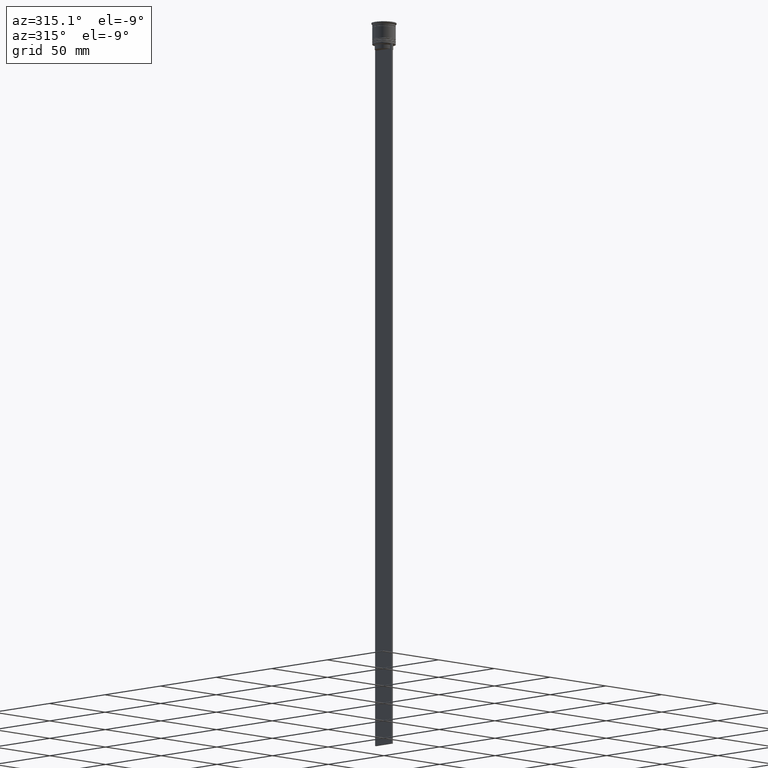
[diagram: clean part render]
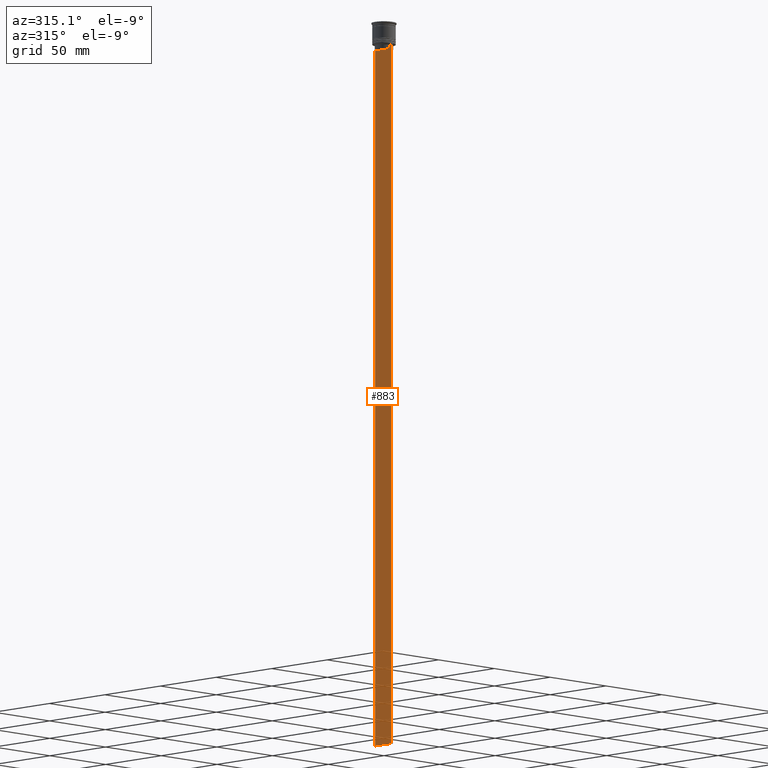
[diagram: same view with one face highlighted and labeled with its STEP entity id]
A machine part, auxiliary view. The second image highlights one B-rep face of the part: STEP entity #883.
In plain terms, the highlighted planar face has unit normal (-1, 0, 0).
Its self-contained STEP definition (entity closure, byte-faithful):
#5 = EDGE_CURVE ( 'NONE', #1518, #1023, #1056, .T. ) ;
#73 = CARTESIAN_POINT ( 'NONE',  ( -0.5000000000000000000, -7.499999999999999112, -464.0000000000000000 ) ) ;
#87 = VECTOR ( 'NONE', #1513, 1000.000000000000000 ) ;
#102 = VECTOR ( 'NONE', #870, 1000.000000000000000 ) ;
#107 = ORIENTED_EDGE ( 'NONE', *, *, #273, .F. ) ;
#109 = ORIENTED_EDGE ( 'NONE', *, *, #263, .F. ) ;
#197 = ORIENTED_EDGE ( 'NONE', *, *, #1519, .T. ) ;
#204 = LINE ( 'NONE', #1581, #1998 ) ;
#263 = EDGE_CURVE ( 'NONE', #2399, #407, #1458, .T. ) ;
#267 = DIRECTION ( 'NONE',  ( -0.000000000000000000, -0.000000000000000000, 1.000000000000000000 ) ) ;
#273 = EDGE_CURVE ( 'NONE', #407, #2125, #499, .T. ) ;
#288 = CARTESIAN_POINT ( 'NONE',  ( -0.5000000000000000000, 6.046020074006152711, -14.33335695351623151 ) ) ;
#327 = CARTESIAN_POINT ( 'NONE',  ( -0.5000000000000000000, -6.380438856379706536, -14.00000000000000178 ) ) ;
#407 = VERTEX_POINT ( 'NONE', #818 ) ;
#462 = CARTESIAN_POINT ( 'NONE',  ( -0.5000000000000000000, -7.499999999999999112, -14.00000000000000178 ) ) ;
#465 = DIRECTION ( 'NONE',  ( 0.000000000000000000, 0.000000000000000000, 1.000000000000000000 ) ) ;
#479 = ORIENTED_EDGE ( 'NONE', *, *, #1276, .F. ) ;
#497 = CARTESIAN_POINT ( 'NONE',  ( -0.5000000000000000000, -5.878775382679625849, -14.50000000000000000 ) ) ;
#499 = LINE ( 'NONE', #2051, #2371 ) ;
#539 = ORIENTED_EDGE ( 'NONE', *, *, #5, .F. ) ;
#552 = DIRECTION ( 'NONE',  ( 0.000000000000000000, -1.000000000000000000, 0.000000000000000000 ) ) ;
#567 = LINE ( 'NONE', #1336, #1309 ) ;
#573 = B_SPLINE_CURVE_WITH_KNOTS ( 'NONE', 3,
 ( #497, #1281, #2050, #327 ),
 .UNSPECIFIED., .F., .F.,
 ( 4, 4 ),
 ( 0.02765270321082434479, 0.02836198271238431559 ),
 .UNSPECIFIED. ) ;
#593 = ORIENTED_EDGE ( 'NONE', *, *, #2248, .F. ) ;
#613 = CARTESIAN_POINT ( 'NONE',  ( -0.5000000000000000000, -7.383088784512886527, -14.00000000000000178 ) ) ;
#639 = VECTOR ( 'NONE', #2379, 1000.000000000000000 ) ;
#667 = FACE_OUTER_BOUND ( 'NONE', #2329, .T. ) ;
#680 = CARTESIAN_POINT ( 'NONE',  ( -0.5000000000000000000, -7.499999999999999112, 1.033296378372908997 ) ) ;
#695 = VECTOR ( 'NONE', #2075, 1000.000000000000000 ) ;
#696 = VERTEX_POINT ( 'NONE', #797 ) ;
#752 = CARTESIAN_POINT ( 'NONE',  ( -0.5000000000000000000, -7.499999999999999112, -14.00000000000000178 ) ) ;
#792 = ORIENTED_EDGE ( 'NONE', *, *, #1772, .F. ) ;
#797 = CARTESIAN_POINT ( 'NONE',  ( -0.5000000000000000000, 6.380438856379706536, -14.00000000000000178 ) ) ;
#816 = ORIENTED_EDGE ( 'NONE', *, *, #2323, .F. ) ;
#818 = CARTESIAN_POINT ( 'NONE',  ( -0.5000000000000000000, 5.878775382679625849, -17.00000000000000000 ) ) ;
#846 = CARTESIAN_POINT ( 'NONE',  ( -0.5000000000000000000, -5.878775382679625849, -17.00000000000000000 ) ) ;
#855 = DIRECTION ( 'NONE',  ( -1.000000000000000000, 0.000000000000000000, 0.000000000000000000 ) ) ;
#870 = DIRECTION ( 'NONE',  ( 0.000000000000000000, -1.000000000000000000, 0.000000000000000000 ) ) ;
#883 = ADVANCED_FACE ( 'NONE', ( #667 ), #2411, .T. ) ;
#888 = CARTESIAN_POINT ( 'NONE',  ( -0.5000000000000000000, 5.878775382679625849, 0.000000000000000000 ) ) ;
#943 = ORIENTED_EDGE ( 'NONE', *, *, #1039, .F. ) ;
#994 = CARTESIAN_POINT ( 'NONE',  ( -0.5000000000000000000, -5.878775382679625849, -14.50000000000000000 ) ) ;
#1023 = VERTEX_POINT ( 'NONE', #752 ) ;
#1030 = CARTESIAN_POINT ( 'NONE',  ( -0.5000000000000000000, 6.380438856379706536, -14.00000000000000178 ) ) ;
#1039 = EDGE_CURVE ( 'NONE', #2138, #1331, #2240, .T. ) ;
#1056 = LINE ( 'NONE', #462, #639 ) ;
#1111 = CARTESIAN_POINT ( 'NONE',  ( -0.5000000000000000000, -7.499999999999999112, -464.0000000000000000 ) ) ;
#1121 = VECTOR ( 'NONE', #1675, 1000.000000000000000 ) ;
#1146 = CARTESIAN_POINT ( 'NONE',  ( -0.5000000000000000000, -7.499999999999999112, -14.00000000000000178 ) ) ;
#1170 = DIRECTION ( 'NONE',  ( 0.000000000000000000, 0.000000000000000000, -1.000000000000000000 ) ) ;
#1261 = B_SPLINE_CURVE_WITH_KNOTS ( 'NONE', 3,
 ( #1030, #2197, #288, #1836 ),
 .UNSPECIFIED., .F., .F.,
 ( 4, 4 ),
 ( 0.01087727669788152163, 0.01158556069794289788 ),
 .UNSPECIFIED. ) ;
#1276 = EDGE_CURVE ( 'NONE', #2125, #1504, #1609, .T. ) ;
#1281 = CARTESIAN_POINT ( 'NONE',  ( -0.5000000000000000000, -6.046019991840948293, -14.33335703538585726 ) ) ;
#1309 = VECTOR ( 'NONE', #552, 1000.000000000000000 ) ;
#1331 = VERTEX_POINT ( 'NONE', #2030 ) ;
#1336 = CARTESIAN_POINT ( 'NONE',  ( -0.5000000000000000000, -7.499999999999999112, -14.00000000000000178 ) ) ;
#1390 = EDGE_CURVE ( 'NONE', #1023, #2138, #2096, .T. ) ;
#1458 = LINE ( 'NONE', #888, #1121 ) ;
#1504 = VERTEX_POINT ( 'NONE', #994 ) ;
#1513 = DIRECTION ( 'NONE',  ( 0.000000000000000000, 1.000000000000000000, 0.000000000000000000 ) ) ;
#1518 = VERTEX_POINT ( 'NONE', #613 ) ;
#1519 = EDGE_CURVE ( 'NONE', #2091, #1331, #204, .T. ) ;
#1541 = ORIENTED_EDGE ( 'NONE', *, *, #1875, .F. ) ;
#1580 = VECTOR ( 'NONE', #267, 1000.000000000000000 ) ;
#1581 = CARTESIAN_POINT ( 'NONE',  ( -0.5000000000000000000, 7.500000000000002665, 1.033296378372908997 ) ) ;
#1609 = LINE ( 'NONE', #1851, #1580 ) ;
#1650 = ORIENTED_EDGE ( 'NONE', *, *, #1887, .F. ) ;
#1675 = DIRECTION ( 'NONE',  ( 0.000000000000000000, 0.000000000000000000, -1.000000000000000000 ) ) ;
#1728 = CARTESIAN_POINT ( 'NONE',  ( -0.5000000000000000000, -6.380438856379706536, -14.00000000000000178 ) ) ;
#1772 = EDGE_CURVE ( 'NONE', #696, #2399, #1261, .T. ) ;
#1834 = CARTESIAN_POINT ( 'NONE',  ( -0.5000000000000000000, 7.500000000000002665, -14.00000000000000178 ) ) ;
#1836 = CARTESIAN_POINT ( 'NONE',  ( -0.5000000000000000000, 5.878775382679625849, -14.50000000000000000 ) ) ;
#1847 = LINE ( 'NONE', #1146, #1925 ) ;
#1851 = CARTESIAN_POINT ( 'NONE',  ( -0.5000000000000000000, -5.878775382679625849, 0.000000000000000000 ) ) ;
#1874 = LINE ( 'NONE', #2072, #102 ) ;
#1875 = EDGE_CURVE ( 'NONE', #2261, #696, #1874, .T. ) ;
#1887 = EDGE_CURVE ( 'NONE', #1504, #2283, #573, .T. ) ;
#1925 = VECTOR ( 'NONE', #1930, 1000.000000000000000 ) ;
#1930 = DIRECTION ( 'NONE',  ( 0.000000000000000000, -1.000000000000000000, 0.000000000000000000 ) ) ;
#1998 = VECTOR ( 'NONE', #1170, 1000.000000000000000 ) ;
#2030 = CARTESIAN_POINT ( 'NONE',  ( -0.5000000000000000000, 7.500000000000002665, -464.0000000000000000 ) ) ;
#2050 = CARTESIAN_POINT ( 'NONE',  ( -0.5000000000000000000, -6.213239311785844876, -14.16668851110870087 ) ) ;
#2051 = CARTESIAN_POINT ( 'NONE',  ( -0.5000000000000000000, 5.899999999999998579, -17.00000000000000000 ) ) ;
#2072 = CARTESIAN_POINT ( 'NONE',  ( -0.5000000000000000000, -7.499999999999999112, -14.00000000000000178 ) ) ;
#2075 = DIRECTION ( 'NONE',  ( 0.000000000000000000, 0.000000000000000000, -1.000000000000000000 ) ) ;
#2091 = VERTEX_POINT ( 'NONE', #1834 ) ;
#2096 = LINE ( 'NONE', #2236, #695 ) ;
#2125 = VERTEX_POINT ( 'NONE', #846 ) ;
#2138 = VERTEX_POINT ( 'NONE', #73 ) ;
#2197 = CARTESIAN_POINT ( 'NONE',  ( -0.5000000000000000000, 6.213239387491007015, -14.16668843563492430 ) ) ;
#2236 = CARTESIAN_POINT ( 'NONE',  ( -0.5000000000000000000, -7.499999999999999112, 1.033296378372908997 ) ) ;
#2240 = LINE ( 'NONE', #1111, #87 ) ;
#2244 = CARTESIAN_POINT ( 'NONE',  ( -0.5000000000000000000, 7.383088784512886527, -14.00000000000000178 ) ) ;
#2248 = EDGE_CURVE ( 'NONE', #2091, #2261, #567, .T. ) ;
#2259 = AXIS2_PLACEMENT_3D ( 'NONE', #680, #855, #465 ) ;
#2260 = ORIENTED_EDGE ( 'NONE', *, *, #1390, .F. ) ;
#2261 = VERTEX_POINT ( 'NONE', #2244 ) ;
#2283 = VERTEX_POINT ( 'NONE', #1728 ) ;
#2321 = CARTESIAN_POINT ( 'NONE',  ( -0.5000000000000000000, 5.878775382679625849, -14.50000000000000000 ) ) ;
#2323 = EDGE_CURVE ( 'NONE', #2283, #1518, #1847, .T. ) ;
#2329 = EDGE_LOOP ( 'NONE', ( #792, #1541, #593, #197, #943, #2260, #539, #816, #1650, #479, #107, #109 ) ) ;
#2371 = VECTOR ( 'NONE', #2434, 1000.000000000000000 ) ;
#2379 = DIRECTION ( 'NONE',  ( 0.000000000000000000, -1.000000000000000000, 0.000000000000000000 ) ) ;
#2399 = VERTEX_POINT ( 'NONE', #2321 ) ;
#2411 = PLANE ( 'NONE',  #2259 ) ;
#2434 = DIRECTION ( 'NONE',  ( 0.000000000000000000, -1.000000000000000000, 0.000000000000000000 ) ) ;